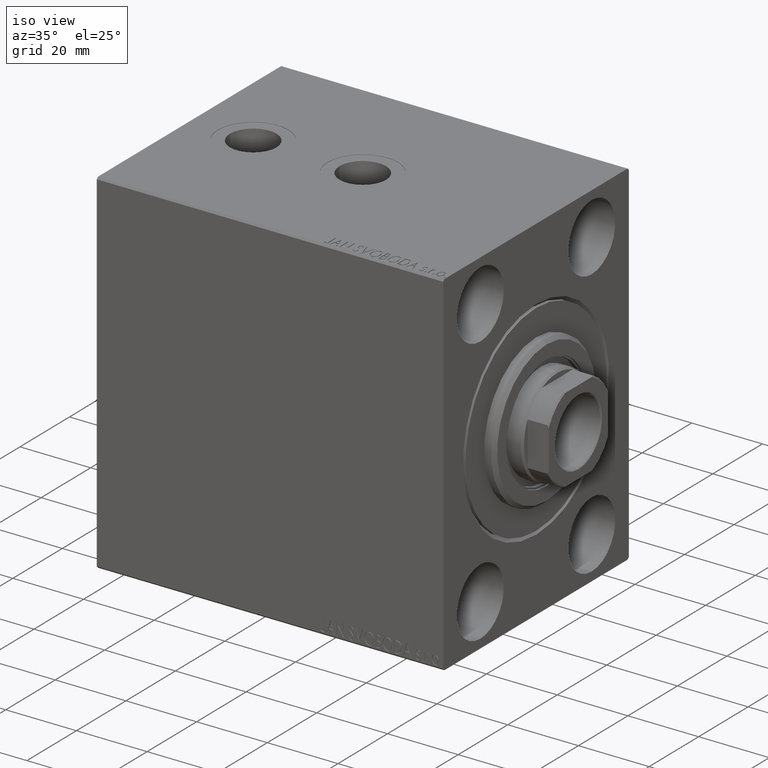
[diagram: clean part render]
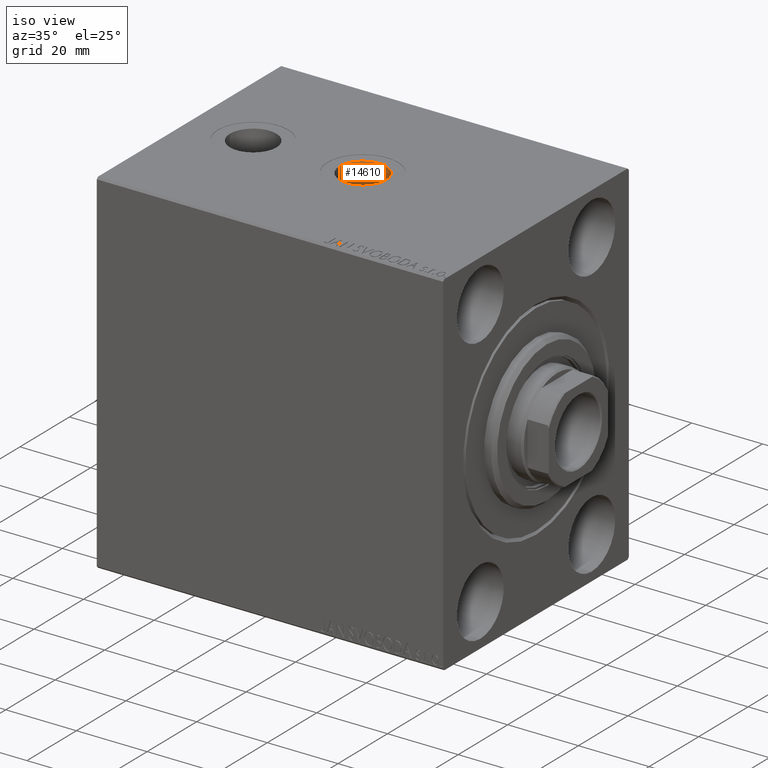
[diagram: same view with one face highlighted and labeled with its STEP entity id]
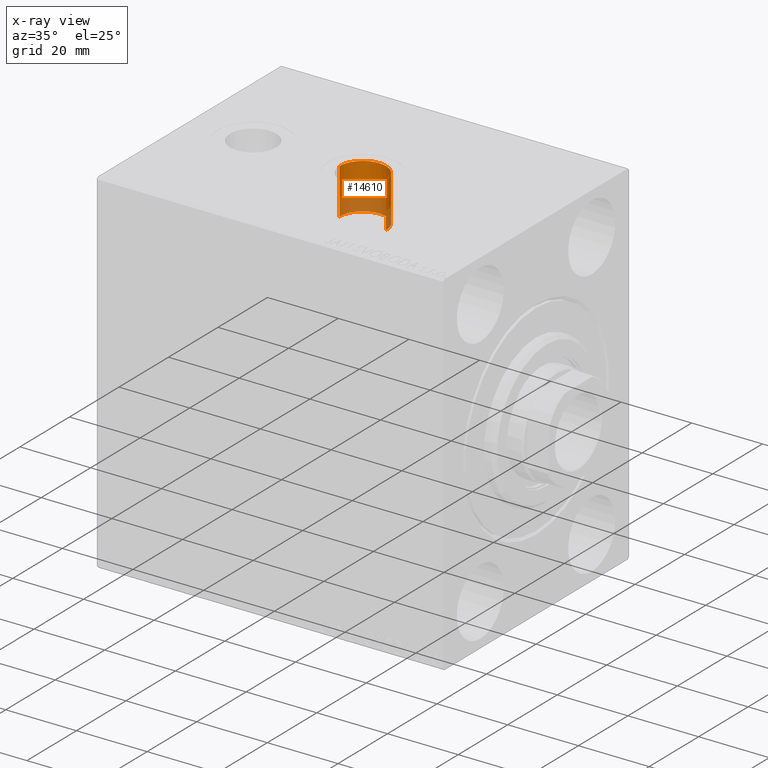
[diagram: x-ray of the same camera — body ghosted, the highlighted face saturated]
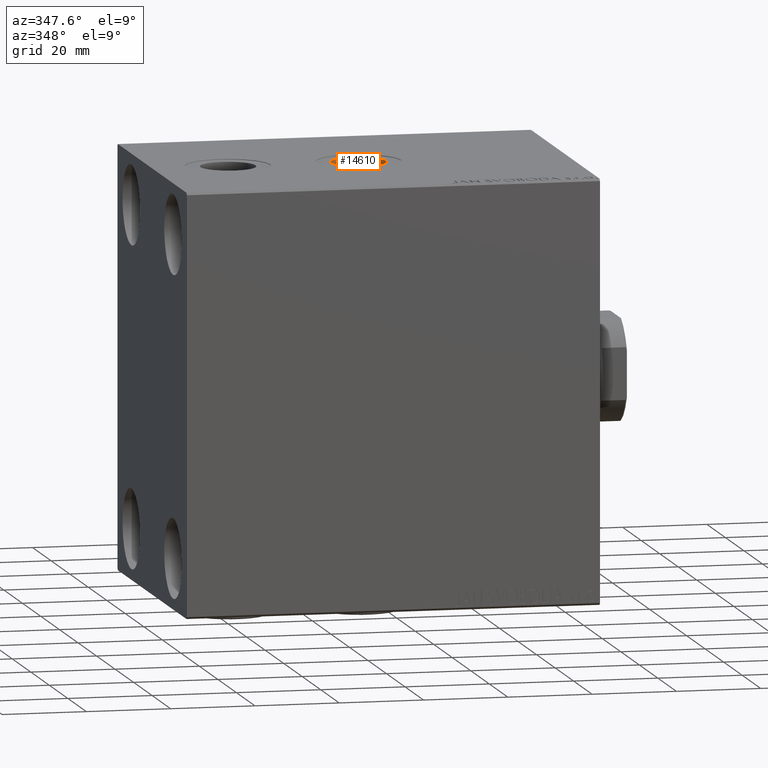
[diagram: same view with one face highlighted and labeled with its STEP entity id]
A machine part, iso view. The second image highlights one B-rep face of the part: STEP entity #14610.
The next image is the same camera in x-ray: the body ghosted, the highlighted face saturated — about 39% of this face is hidden behind the body in this view.
A second angle (auxiliary view) of the same face is appended — the face is thin or edge-on in the first view.
In plain terms, the highlighted cylindrical surface (edge-blend (fillet) strip) has radius 6.58 mm, axis along (0, -0, 1).
Its self-contained STEP definition (entity closure, byte-faithful):
#366 = EDGE_LOOP ( 'NONE', ( #14436, #32477, #28383, #41410 ) ) ;
#511 = AXIS2_PLACEMENT_3D ( 'NONE', #7050, #21211, #45892 ) ;
#1840 = CARTESIAN_POINT ( 'NONE',  ( 55.58000000000000540, 3.840446543403060105E-15, -49.90000000000000568 ) ) ;
#4639 = CARTESIAN_POINT ( 'NONE',  ( 49.00000000000000000, 3.034628949564101458E-15, -37.00000000000000711 ) ) ;
#5204 = VECTOR ( 'NONE', #20339, 1000.000000000000000 ) ;
#6036 = AXIS2_PLACEMENT_3D ( 'NONE', #4639, #43220, #22509 ) ;
#7050 = CARTESIAN_POINT ( 'NONE',  ( 49.00000000000000000, 3.034628949564101458E-15, -37.00000000000000711 ) ) ;
#10881 = EDGE_CURVE ( 'NONE', #40464, #42789, #26512, .T. ) ;
#12114 = CARTESIAN_POINT ( 'NONE',  ( 42.42000000000000171, 3.034628949564101458E-15, -37.00000000000000711 ) ) ;
#14436 = ORIENTED_EDGE ( 'NONE', *, *, #21596, .F. ) ;
#14610 = ADVANCED_FACE ( 'NONE', ( #45658 ), #31690, .F. ) ;
#15212 = VERTEX_POINT ( 'NONE', #1840 ) ;
#15690 = DIRECTION ( 'NONE',  ( -1.000000000000000000, 0.000000000000000000, 0.000000000000000000 ) ) ;
#19613 = DIRECTION ( 'NONE',  ( 0.000000000000000000, 0.000000000000000000, -1.000000000000000000 ) ) ;
#20339 = DIRECTION ( 'NONE',  ( -0.000000000000000000, -0.000000000000000000, -1.000000000000000000 ) ) ;
#21211 = DIRECTION ( 'NONE',  ( -0.000000000000000000, -0.000000000000000000, -1.000000000000000000 ) ) ;
#21596 = EDGE_CURVE ( 'NONE', #43366, #15212, #30595, .T. ) ;
#22366 = CIRCLE ( 'NONE', #6036, 6.580000000000002736 ) ;
#22436 = CARTESIAN_POINT ( 'NONE',  ( 49.00000000000000000, 3.034628949564101458E-15, -49.90000000000000568 ) ) ;
#22509 = DIRECTION ( 'NONE',  ( -1.000000000000000000, 0.000000000000000000, 0.000000000000000000 ) ) ;
#23376 = CARTESIAN_POINT ( 'NONE',  ( 55.58000000000000540, 3.840446543403060105E-15, -37.00000000000000711 ) ) ;
#26512 = LINE ( 'NONE', #12114, #31695 ) ;
#28281 = CARTESIAN_POINT ( 'NONE',  ( 55.58000000000000540, 3.840446543403060105E-15, -37.00000000000000711 ) ) ;
#28383 = ORIENTED_EDGE ( 'NONE', *, *, #10881, .T. ) ;
#30316 = EDGE_CURVE ( 'NONE', #40464, #43366, #22366, .T. ) ;
#30595 = LINE ( 'NONE', #23376, #5204 ) ;
#31690 = CYLINDRICAL_SURFACE ( 'NONE', #511, 6.580000000000002736 ) ;
#31695 = VECTOR ( 'NONE', #32800, 1000.000000000000000 ) ;
#32477 = ORIENTED_EDGE ( 'NONE', *, *, #30316, .F. ) ;
#32800 = DIRECTION ( 'NONE',  ( -0.000000000000000000, -0.000000000000000000, -1.000000000000000000 ) ) ;
#35378 = CIRCLE ( 'NONE', #42842, 6.580000000000002736 ) ;
#40082 = EDGE_CURVE ( 'NONE', #42789, #15212, #35378, .T. ) ;
#40464 = VERTEX_POINT ( 'NONE', #42526 ) ;
#41410 = ORIENTED_EDGE ( 'NONE', *, *, #40082, .T. ) ;
#42526 = CARTESIAN_POINT ( 'NONE',  ( 42.42000000000000171, 3.034628949564101458E-15, -37.00000000000000711 ) ) ;
#42789 = VERTEX_POINT ( 'NONE', #43740 ) ;
#42842 = AXIS2_PLACEMENT_3D ( 'NONE', #22436, #19613, #15690 ) ;
#43220 = DIRECTION ( 'NONE',  ( 0.000000000000000000, 0.000000000000000000, -1.000000000000000000 ) ) ;
#43366 = VERTEX_POINT ( 'NONE', #28281 ) ;
#43740 = CARTESIAN_POINT ( 'NONE',  ( 42.42000000000000171, 3.034628949564101458E-15, -49.90000000000000568 ) ) ;
#45658 = FACE_OUTER_BOUND ( 'NONE', #366, .T. ) ;
#45892 = DIRECTION ( 'NONE',  ( -1.000000000000000000, 0.000000000000000000, 0.000000000000000000 ) ) ;